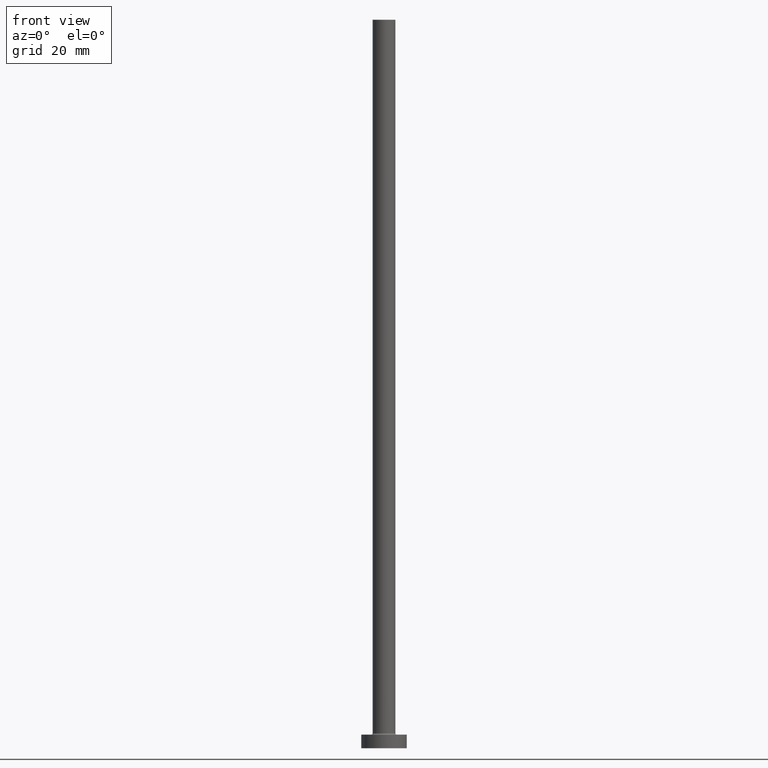
[diagram: clean part render]
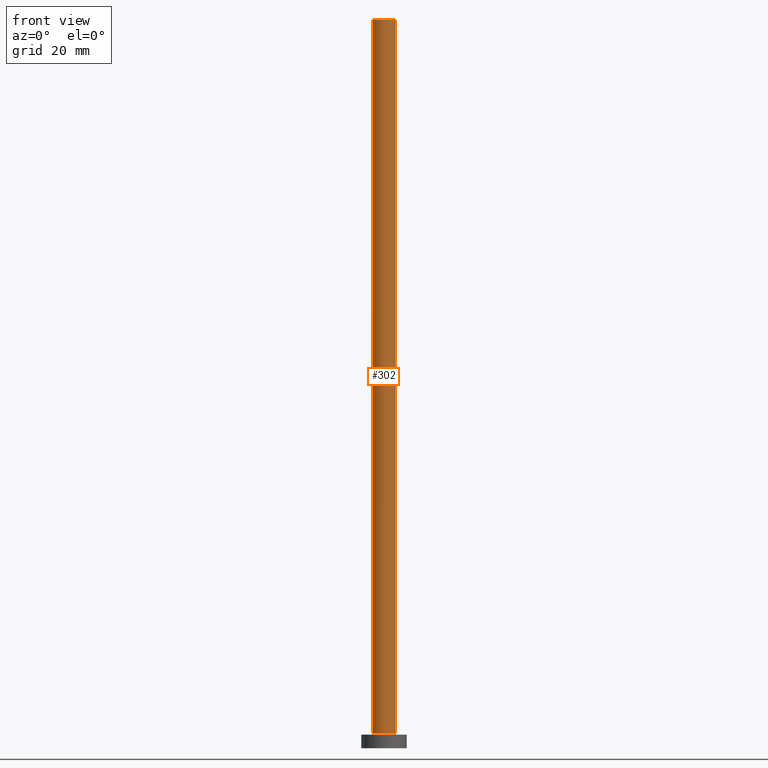
[diagram: same view with one face highlighted and labeled with its STEP entity id]
A machine part, front view. The second image highlights one B-rep face of the part: STEP entity #302.
In plain terms, the highlighted cylindrical surface (edge-blend (fillet) strip) has radius 2.5 mm, axis along (-0, -0, -1).
Its self-contained STEP definition (entity closure, byte-faithful):
#17 = CARTESIAN_POINT ( 'NONE',  ( 0.000000000000000000, 0.000000000000000000, 160.0000000000000000 ) ) ;
#19 = AXIS2_PLACEMENT_3D ( 'NONE', #319, #276, #247 ) ;
#59 = AXIS2_PLACEMENT_3D ( 'NONE', #313, #245, #143 ) ;
#64 = VECTOR ( 'NONE', #315, 1000.000000000000000 ) ;
#73 = ORIENTED_EDGE ( 'NONE', *, *, #156, .F. ) ;
#82 = VERTEX_POINT ( 'NONE', #376 ) ;
#115 = ORIENTED_EDGE ( 'NONE', *, *, #429, .F. ) ;
#143 = DIRECTION ( 'NONE',  ( 1.000000000000000000, 0.000000000000000000, 0.000000000000000000 ) ) ;
#150 = VERTEX_POINT ( 'NONE', #240 ) ;
#153 = CYLINDRICAL_SURFACE ( 'NONE', #195, 2.500000000000000000 ) ;
#156 = EDGE_CURVE ( 'NONE', #150, #82, #207, .T. ) ;
#170 = ORIENTED_EDGE ( 'NONE', *, *, #431, .T. ) ;
#182 = CIRCLE ( 'NONE', #19, 2.500000000000000000 ) ;
#186 = LINE ( 'NONE', #320, #218 ) ;
#195 = AXIS2_PLACEMENT_3D ( 'NONE', #17, #392, #285 ) ;
#207 = LINE ( 'NONE', #311, #64 ) ;
#215 = VERTEX_POINT ( 'NONE', #280 ) ;
#218 = VECTOR ( 'NONE', #364, 1000.000000000000000 ) ;
#219 = EDGE_LOOP ( 'NONE', ( #73, #115, #326, #170 ) ) ;
#236 = CIRCLE ( 'NONE', #59, 2.500000000000000000 ) ;
#238 = CARTESIAN_POINT ( 'NONE',  ( -2.500000000000000000, 0.000000000000000000, 160.0000000000000000 ) ) ;
#240 = CARTESIAN_POINT ( 'NONE',  ( 2.500000000000000000, 3.061616997868383141E-16, 160.0000000000000000 ) ) ;
#241 = EDGE_CURVE ( 'NONE', #441, #215, #186, .T. ) ;
#245 = DIRECTION ( 'NONE',  ( 0.000000000000000000, 0.000000000000000000, 1.000000000000000000 ) ) ;
#247 = DIRECTION ( 'NONE',  ( 1.000000000000000000, 0.000000000000000000, 0.000000000000000000 ) ) ;
#276 = DIRECTION ( 'NONE',  ( 0.000000000000000000, 0.000000000000000000, 1.000000000000000000 ) ) ;
#280 = CARTESIAN_POINT ( 'NONE',  ( -2.500000000000000000, 0.000000000000000000, 3.299999999999997158 ) ) ;
#285 = DIRECTION ( 'NONE',  ( -1.000000000000000000, 0.000000000000000000, 0.000000000000000000 ) ) ;
#302 = ADVANCED_FACE ( 'NONE', ( #327 ), #153, .T. ) ;
#311 = CARTESIAN_POINT ( 'NONE',  ( 2.500000000000000000, 3.061616997868383141E-16, 160.0000000000000000 ) ) ;
#313 = CARTESIAN_POINT ( 'NONE',  ( 0.000000000000000000, 0.000000000000000000, 160.0000000000000000 ) ) ;
#315 = DIRECTION ( 'NONE',  ( -0.000000000000000000, -0.000000000000000000, -1.000000000000000000 ) ) ;
#319 = CARTESIAN_POINT ( 'NONE',  ( 0.000000000000000000, 0.000000000000000000, 3.299999999999997158 ) ) ;
#320 = CARTESIAN_POINT ( 'NONE',  ( -2.500000000000000000, 0.000000000000000000, 160.0000000000000000 ) ) ;
#326 = ORIENTED_EDGE ( 'NONE', *, *, #241, .T. ) ;
#327 = FACE_OUTER_BOUND ( 'NONE', #219, .T. ) ;
#364 = DIRECTION ( 'NONE',  ( -0.000000000000000000, -0.000000000000000000, -1.000000000000000000 ) ) ;
#376 = CARTESIAN_POINT ( 'NONE',  ( 2.500000000000000000, 3.061616997868383141E-16, 3.299999999999997158 ) ) ;
#392 = DIRECTION ( 'NONE',  ( -0.000000000000000000, -0.000000000000000000, -1.000000000000000000 ) ) ;
#429 = EDGE_CURVE ( 'NONE', #441, #150, #236, .T. ) ;
#431 = EDGE_CURVE ( 'NONE', #215, #82, #182, .T. ) ;
#441 = VERTEX_POINT ( 'NONE', #238 ) ;